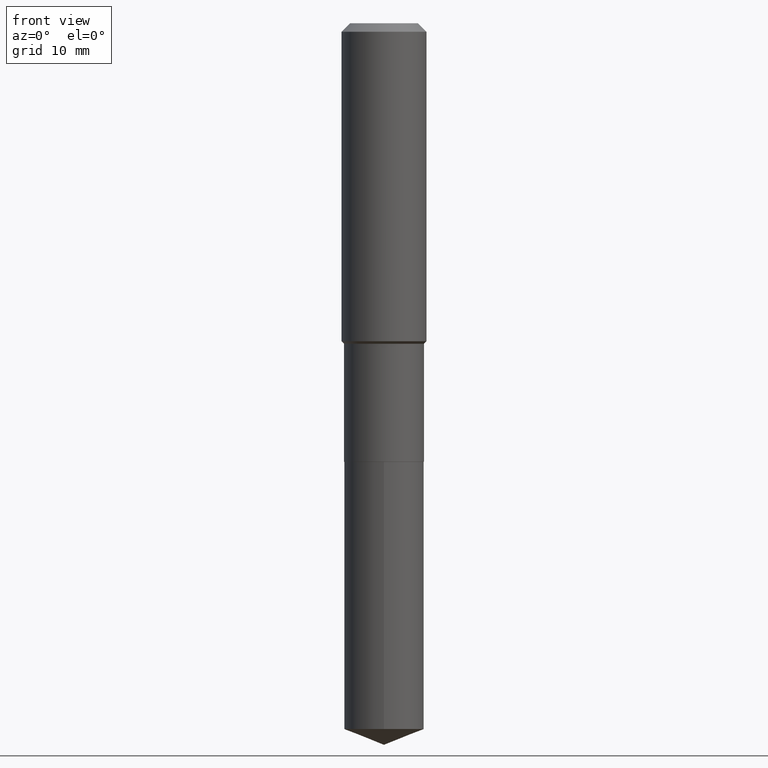
[diagram: clean part render]
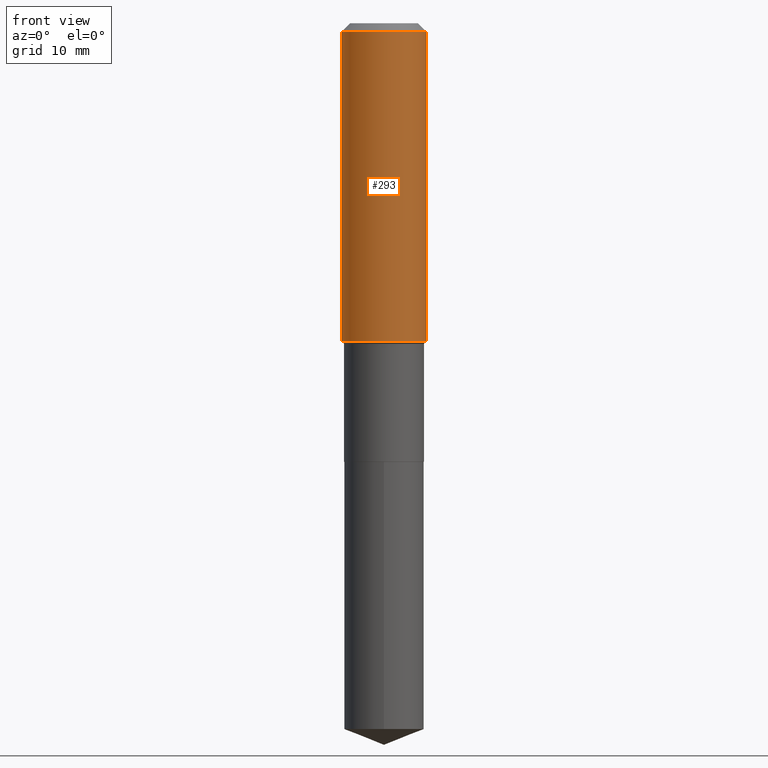
[diagram: same view with one face highlighted and labeled with its STEP entity id]
A machine part, front view. The second image highlights one B-rep face of the part: STEP entity #293.
In plain terms, the highlighted cylindrical surface (partial cylindrical patch) has radius 5.9995 mm, axis along (-0, 0, 1).
Its self-contained STEP definition (entity closure, byte-faithful):
#15 = CARTESIAN_POINT ( 'NONE',  ( 0.2361999999999999933, -1.814313362916447440E-15, -0.04724000000000028177 ) ) ;
#24 = CARTESIAN_POINT ( 'NONE',  ( 0.2362000000000001043, -1.649375784469496920E-15, 1.151752954443000508E-29 ) ) ;
#27 = CARTESIAN_POINT ( 'NONE',  ( 1.155239464041865506E-30, -1.649375784469511859E-16, -0.04724000000000028177 ) ) ;
#40 = VERTEX_POINT ( 'NONE', #180 ) ;
#70 = EDGE_CURVE ( 'NONE', #152, #123, #298, .T. ) ;
#79 = DIRECTION ( 'NONE',  ( -2.445468806185136877E-29, 3.491481338843145188E-15, 1.000000000000000000 ) ) ;
#80 = EDGE_CURVE ( 'NONE', #237, #123, #181, .T. ) ;
#106 = DIRECTION ( 'NONE',  ( -2.445468806185136877E-29, 3.491481338843145188E-15, 1.000000000000000000 ) ) ;
#123 = VERTEX_POINT ( 'NONE', #15 ) ;
#137 = CARTESIAN_POINT ( 'NONE',  ( 4.328112966626764519E-29, -6.179398247551541124E-15, -1.769849999999999923 ) ) ;
#138 = ORIENTED_EDGE ( 'NONE', *, *, #141, .T. ) ;
#141 = EDGE_CURVE ( 'NONE', #40, #237, #412, .T. ) ;
#152 = VERTEX_POINT ( 'NONE', #437 ) ;
#166 = CARTESIAN_POINT ( 'NONE',  ( 0.2362000000000002153, -7.828774032021037649E-15, -1.769849999999999923 ) ) ;
#180 = CARTESIAN_POINT ( 'NONE',  ( -0.2362000000000002153, -4.501096305686182363E-15, -1.769849999999999923 ) ) ;
#181 = LINE ( 'NONE', #24, #258 ) ;
#188 = CYLINDRICAL_SURFACE ( 'NONE', #354, 0.2362000000000001043 ) ;
#200 = ORIENTED_EDGE ( 'NONE', *, *, #80, .T. ) ;
#213 = DIRECTION ( 'NONE',  ( -2.445468806185136597E-29, 3.491481338843145583E-15, 1.000000000000000000 ) ) ;
#223 = CARTESIAN_POINT ( 'NONE',  ( 0.000000000000000000, 0.000000000000000000, 0.000000000000000000 ) ) ;
#237 = VERTEX_POINT ( 'NONE', #166 ) ;
#257 = DIRECTION ( 'NONE',  ( -2.445468806185136597E-29, 3.491481338843145583E-15, 1.000000000000000000 ) ) ;
#258 = VECTOR ( 'NONE', #106, 39.37007874015748143 ) ;
#268 = ORIENTED_EDGE ( 'NONE', *, *, #442, .F. ) ;
#293 = ADVANCED_FACE ( 'NONE', ( #371 ), #188, .T. ) ;
#298 = CIRCLE ( 'NONE', #375, 0.2361999999999999933 ) ;
#299 = DIRECTION ( 'NONE',  ( -2.445468806185136597E-29, 3.491481338843145583E-15, 1.000000000000000000 ) ) ;
#308 = LINE ( 'NONE', #353, #428 ) ;
#326 = DIRECTION ( 'NONE',  ( 1.000000000000000000, -6.982962677686266711E-15, 0.000000000000000000 ) ) ;
#345 = DIRECTION ( 'NONE',  ( 1.000000000000000000, -6.982962677686266711E-15, 4.876176775795935793E-29 ) ) ;
#353 = CARTESIAN_POINT ( 'NONE',  ( -0.2362000000000001043, 1.678301941865357380E-15, -1.161852468318209317E-29 ) ) ;
#354 = AXIS2_PLACEMENT_3D ( 'NONE', #223, #299, #345 ) ;
#366 = DIRECTION ( 'NONE',  ( 1.000000000000000000, -6.982962677686266711E-15, 0.000000000000000000 ) ) ;
#371 = FACE_OUTER_BOUND ( 'NONE', #456, .T. ) ;
#375 = AXIS2_PLACEMENT_3D ( 'NONE', #27, #257, #366 ) ;
#412 = CIRCLE ( 'NONE', #427, 0.2362000000000002153 ) ;
#427 = AXIS2_PLACEMENT_3D ( 'NONE', #137, #213, #326 ) ;
#428 = VECTOR ( 'NONE', #79, 39.37007874015748143 ) ;
#437 = CARTESIAN_POINT ( 'NONE',  ( -0.2361999999999999933, -1.493865971133888639E-15, -0.04724000000000028177 ) ) ;
#442 = EDGE_CURVE ( 'NONE', #40, #152, #308, .T. ) ;
#456 = EDGE_LOOP ( 'NONE', ( #268, #138, #200, #490 ) ) ;
#490 = ORIENTED_EDGE ( 'NONE', *, *, #70, .F. ) ;